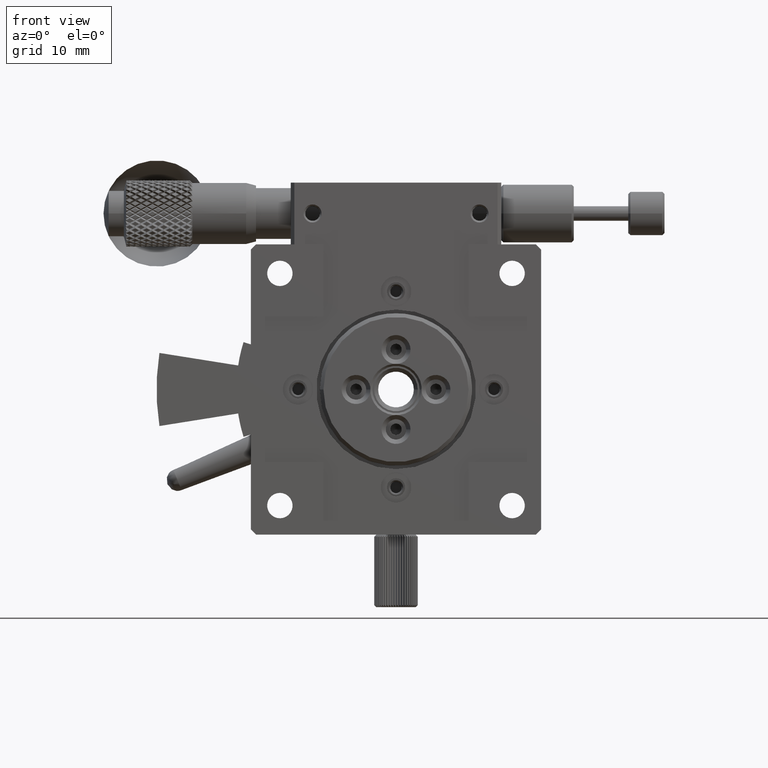
[diagram: clean part render]
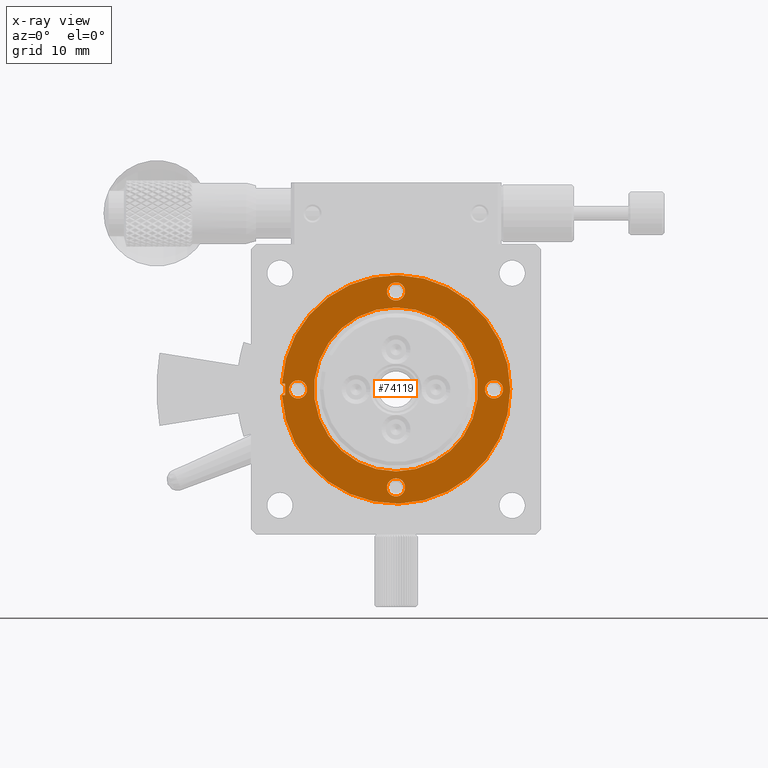
[diagram: x-ray — body ghosted, one internal face saturated and labeled with its STEP entity id]
A machine part, front view, then the same camera in x-ray: the body is ghosted and one INTERNAL B-rep face — a face not visible from any outside direction — is saturated and labeled: STEP entity #74119.
In plain terms, the highlighted planar face has unit normal (0, 1, 0).
Its self-contained STEP definition (entity closure, byte-faithful):
#504 = FACE_OUTER_BOUND ( 'NONE', #6520, .T. ) ;
#1042 = VERTEX_POINT ( 'NONE', #64106 ) ;
#3025 = EDGE_LOOP ( 'NONE', ( #91869 ) ) ;
#3357 = CARTESIAN_POINT ( 'NONE',  ( 6.500000000000000888, 4.000000000000000000, -20.00000000000000000 ) ) ;
#3485 = LINE ( 'NONE', #54324, #11057 ) ;
#4718 = DIRECTION ( 'NONE',  ( 0.000000000000000000, 0.000000000000000000, -1.000000000000000000 ) ) ;
#4765 = EDGE_CURVE ( 'NONE', #25893, #25893, #64134, .T. ) ;
#6520 = EDGE_LOOP ( 'NONE', ( #6830, #89009, #75204, #30872 ) ) ;
#6658 = VERTEX_POINT ( 'NONE', #59696 ) ;
#6830 = ORIENTED_EDGE ( 'NONE', *, *, #28052, .F. ) ;
#7045 = CARTESIAN_POINT ( 'NONE',  ( 20.00000000000000000, 4.000000000000000888, -20.00000000000000000 ) ) ;
#9654 = CIRCLE ( 'NONE', #49890, 1.250000000000001110 ) ;
#10921 = ORIENTED_EDGE ( 'NONE', *, *, #29675, .T. ) ;
#11057 = VECTOR ( 'NONE', #68369, 1000.000000000000000 ) ;
#11122 = ORIENTED_EDGE ( 'NONE', *, *, #76911, .T. ) ;
#11353 = CARTESIAN_POINT ( 'NONE',  ( 33.50000000000000000, 4.000000000000000000, -20.00000000000000000 ) ) ;
#11879 = DIRECTION ( 'NONE',  ( 0.000000000000000000, 0.000000000000000000, -1.000000000000000000 ) ) ;
#18138 = EDGE_CURVE ( 'NONE', #54789, #54789, #18413, .T. ) ;
#18413 = CIRCLE ( 'NONE', #51228, 1.250000000000000222 ) ;
#20465 = EDGE_LOOP ( 'NONE', ( #87476 ) ) ;
#21118 = FACE_BOUND ( 'NONE', #86078, .T. ) ;
#21674 = VERTEX_POINT ( 'NONE', #33275 ) ;
#22499 = FACE_BOUND ( 'NONE', #57075, .T. ) ;
#23493 = AXIS2_PLACEMENT_3D ( 'NONE', #11353, #52885, #81842 ) ;
#24459 = DIRECTION ( 'NONE',  ( -1.000000000000000000, 0.000000000000000000, 0.000000000000000000 ) ) ;
#25893 = VERTEX_POINT ( 'NONE', #77190 ) ;
#26709 = DIRECTION ( 'NONE',  ( 0.000000000000000000, -1.000000000000000000, 0.000000000000000000 ) ) ;
#28052 = EDGE_CURVE ( 'NONE', #44976, #37795, #3485, .T. ) ;
#29675 = EDGE_CURVE ( 'NONE', #1042, #1042, #9654, .T. ) ;
#30341 = DIRECTION ( 'NONE',  ( 0.000000000000000000, -1.000000000000000000, 0.000000000000000000 ) ) ;
#30710 = DIRECTION ( 'NONE',  ( 0.000000000000000000, 0.000000000000000000, -1.000000000000000000 ) ) ;
#30872 = ORIENTED_EDGE ( 'NONE', *, *, #62289, .T. ) ;
#32239 = EDGE_LOOP ( 'NONE', ( #11122 ) ) ;
#33275 = CARTESIAN_POINT ( 'NONE',  ( 4.269500079463462328, 4.000000000000000000, -19.21649999999999991 ) ) ;
#36338 = CARTESIAN_POINT ( 'NONE',  ( 20.00000000000000000, 4.000000000000000000, -6.500000000000000888 ) ) ;
#36952 = DIRECTION ( 'NONE',  ( 0.000000000000000000, 1.000000000000000000, 0.000000000000000000 ) ) ;
#37795 = VERTEX_POINT ( 'NONE', #63266 ) ;
#42742 = AXIS2_PLACEMENT_3D ( 'NONE', #50903, #36952, #72888 ) ;
#42979 = DIRECTION ( 'NONE',  ( 0.000000000000000000, 0.000000000000000000, 1.000000000000000000 ) ) ;
#44976 = VERTEX_POINT ( 'NONE', #63150 ) ;
#45646 = CARTESIAN_POINT ( 'NONE',  ( 33.50000000000000000, 4.000000000000000000, -21.25000000000000000 ) ) ;
#46537 = VERTEX_POINT ( 'NONE', #45646 ) ;
#49890 = AXIS2_PLACEMENT_3D ( 'NONE', #3357, #26709, #4718 ) ;
#50413 = DIRECTION ( 'NONE',  ( 0.000000000000000000, -1.000000000000000000, -0.000000000000000000 ) ) ;
#50903 = CARTESIAN_POINT ( 'NONE',  ( 35.75000000000000711, 4.000000000000000000, -20.00000000000000000 ) ) ;
#51228 = AXIS2_PLACEMENT_3D ( 'NONE', #36338, #57754, #30710 ) ;
#51348 = VECTOR ( 'NONE', #74633, 1000.000000000000000 ) ;
#52885 = DIRECTION ( 'NONE',  ( 0.000000000000000000, -1.000000000000000000, 0.000000000000000000 ) ) ;
#53795 = CARTESIAN_POINT ( 'NONE',  ( -2.299999999999999822, 4.000000000000000000, -19.21649999999999991 ) ) ;
#54324 = CARTESIAN_POINT ( 'NONE',  ( 4.726542528005360566, 4.000000000000000000, -20.00000000000000000 ) ) ;
#54789 = VERTEX_POINT ( 'NONE', #69297 ) ;
#54807 = DIRECTION ( 'NONE',  ( -0.000000000000000000, 1.000000000000000000, -0.000000000000000000 ) ) ;
#56079 = CIRCLE ( 'NONE', #57549, 1.250000000000001110 ) ;
#57001 = FACE_BOUND ( 'NONE', #20465, .T. ) ;
#57075 = EDGE_LOOP ( 'NONE', ( #10921 ) ) ;
#57393 = DIRECTION ( 'NONE',  ( 0.000000000000000000, 0.000000000000000000, -1.000000000000000000 ) ) ;
#57549 = AXIS2_PLACEMENT_3D ( 'NONE', #65355, #30341, #57393 ) ;
#57754 = DIRECTION ( 'NONE',  ( 0.000000000000000000, -1.000000000000000000, 0.000000000000000000 ) ) ;
#59696 = CARTESIAN_POINT ( 'NONE',  ( 4.269500079463461439, 4.000000000000000000, -20.78350000000000009 ) ) ;
#60640 = CIRCLE ( 'NONE', #71124, 15.75000000000000355 ) ;
#62289 = EDGE_CURVE ( 'NONE', #6658, #37795, #88605, .T. ) ;
#63150 = CARTESIAN_POINT ( 'NONE',  ( 4.726542528005360566, 4.000000000000000000, -19.21649999999999991 ) ) ;
#63266 = CARTESIAN_POINT ( 'NONE',  ( 4.726542528005360566, 4.000000000000000000, -20.78350000000000009 ) ) ;
#64106 = CARTESIAN_POINT ( 'NONE',  ( 6.500000000000000888, 4.000000000000000000, -21.25000000000000000 ) ) ;
#64134 = CIRCLE ( 'NONE', #68615, 11.30000000000000071 ) ;
#64489 = FACE_BOUND ( 'NONE', #3025, .T. ) ;
#65355 = CARTESIAN_POINT ( 'NONE',  ( 20.00000000000000000, 4.000000000000000000, -33.50000000000000000 ) ) ;
#66665 = VERTEX_POINT ( 'NONE', #88107 ) ;
#67413 = VECTOR ( 'NONE', #24459, 1000.000000000000000 ) ;
#67622 = CARTESIAN_POINT ( 'NONE',  ( -2.299999999999999822, 4.000000000000000000, -20.78350000000000009 ) ) ;
#68176 = CIRCLE ( 'NONE', #23493, 1.250000000000001110 ) ;
#68369 = DIRECTION ( 'NONE',  ( -0.000000000000000000, -0.000000000000000000, -1.000000000000000000 ) ) ;
#68615 = AXIS2_PLACEMENT_3D ( 'NONE', #7045, #50413, #42979 ) ;
#69297 = CARTESIAN_POINT ( 'NONE',  ( 20.00000000000000000, 4.000000000000000000, -7.750000000000000888 ) ) ;
#71124 = AXIS2_PLACEMENT_3D ( 'NONE', #77670, #54807, #11879 ) ;
#71513 = FACE_BOUND ( 'NONE', #32239, .T. ) ;
#72888 = DIRECTION ( 'NONE',  ( 0.000000000000000000, -0.000000000000000000, 1.000000000000000000 ) ) ;
#74119 = ADVANCED_FACE ( 'NONE', ( #504, #22499, #64489, #57001, #71513, #21118 ), #86847, .T. ) ;
#74633 = DIRECTION ( 'NONE',  ( 1.000000000000000000, -0.000000000000000000, -0.000000000000000000 ) ) ;
#74958 = EDGE_CURVE ( 'NONE', #66665, #66665, #56079, .T. ) ;
#75204 = ORIENTED_EDGE ( 'NONE', *, *, #75265, .T. ) ;
#75265 = EDGE_CURVE ( 'NONE', #21674, #6658, #60640, .T. ) ;
#75753 = LINE ( 'NONE', #53795, #67413 ) ;
#76911 = EDGE_CURVE ( 'NONE', #46537, #46537, #68176, .T. ) ;
#77190 = CARTESIAN_POINT ( 'NONE',  ( 20.00000000000000000, 4.000000000000000888, -8.699999999999999289 ) ) ;
#77670 = CARTESIAN_POINT ( 'NONE',  ( 20.00000000000000000, 4.000000000000000000, -20.00000000000000000 ) ) ;
#81842 = DIRECTION ( 'NONE',  ( 0.000000000000000000, 0.000000000000000000, -1.000000000000000000 ) ) ;
#86078 = EDGE_LOOP ( 'NONE', ( #87039 ) ) ;
#86847 = PLANE ( 'NONE',  #42742 ) ;
#87039 = ORIENTED_EDGE ( 'NONE', *, *, #4765, .T. ) ;
#87476 = ORIENTED_EDGE ( 'NONE', *, *, #18138, .T. ) ;
#88107 = CARTESIAN_POINT ( 'NONE',  ( 20.00000000000000000, 4.000000000000000000, -34.75000000000000000 ) ) ;
#88605 = LINE ( 'NONE', #67622, #51348 ) ;
#89009 = ORIENTED_EDGE ( 'NONE', *, *, #89044, .T. ) ;
#89044 = EDGE_CURVE ( 'NONE', #44976, #21674, #75753, .T. ) ;
#91869 = ORIENTED_EDGE ( 'NONE', *, *, #74958, .T. ) ;